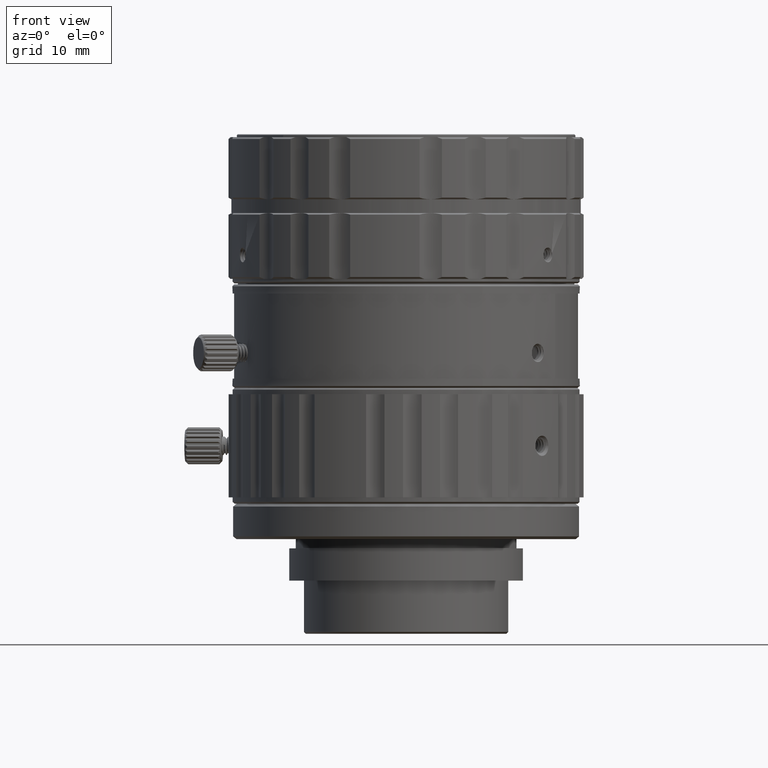
[diagram: clean part render]
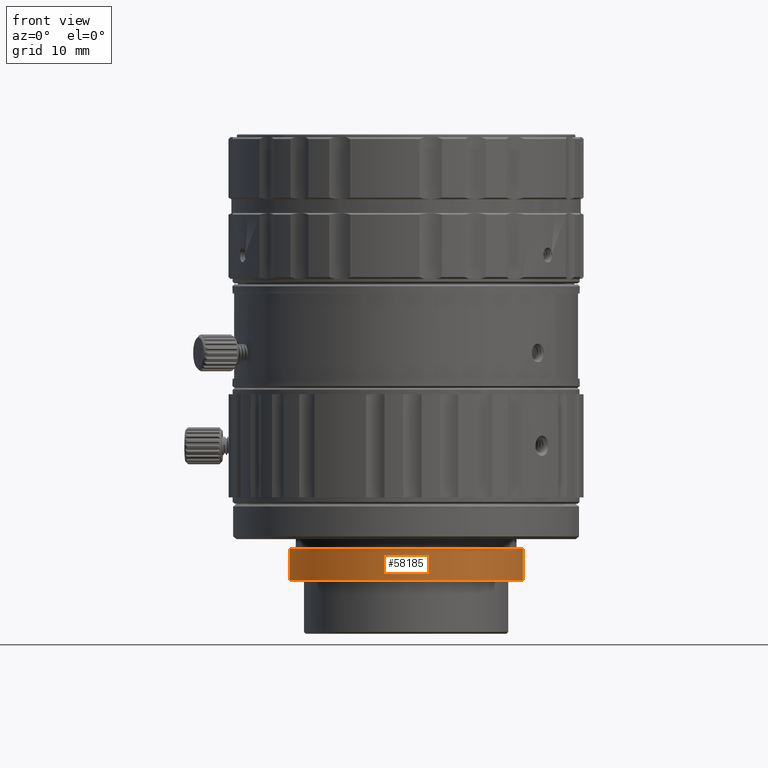
[diagram: same view with one face highlighted and labeled with its STEP entity id]
A machine part, front view. The second image highlights one B-rep face of the part: STEP entity #58185.
In plain terms, the highlighted cylindrical surface (partial cylindrical patch) has radius 12.7 mm, axis along (0, 0, -1).
Its self-contained STEP definition (entity closure, byte-faithful):
#795 = DIRECTION ( 'NONE',  ( -1.000000000000000000, 0.000000000000000000, 0.000000000000000000 ) ) ;
#1706 = ORIENTED_EDGE ( 'NONE', *, *, #60970, .T. ) ;
#2911 = CIRCLE ( 'NONE', #17421, 12.69999999999999929 ) ;
#4985 = CARTESIAN_POINT ( 'NONE',  ( 0.000000000000000000, 0.000000000000000000, -6.250000000000000000 ) ) ;
#6866 = CARTESIAN_POINT ( 'NONE',  ( -12.69999999999999929, -1.555301434917138433E-15, 5.693999999999999950 ) ) ;
#8566 = VERTEX_POINT ( 'NONE', #61919 ) ;
#8665 = EDGE_CURVE ( 'NONE', #55075, #8566, #10967, .T. ) ;
#9605 = VERTEX_POINT ( 'NONE', #36397 ) ;
#10804 = CYLINDRICAL_SURFACE ( 'NONE', #18360, 12.69999999999999929 ) ;
#10967 = CIRCLE ( 'NONE', #15391, 12.69999999999999929 ) ;
#11095 = EDGE_CURVE ( 'NONE', #9605, #42422, #2911, .T. ) ;
#11648 = ORIENTED_EDGE ( 'NONE', *, *, #11095, .T. ) ;
#11839 = FACE_OUTER_BOUND ( 'NONE', #33766, .T. ) ;
#15391 = AXIS2_PLACEMENT_3D ( 'NONE', #4985, #22072, #795 ) ;
#17421 = AXIS2_PLACEMENT_3D ( 'NONE', #64048, #41337, #47270 ) ;
#18360 = AXIS2_PLACEMENT_3D ( 'NONE', #42158, #52644, #43191 ) ;
#18818 = CARTESIAN_POINT ( 'NONE',  ( -12.69999999999999929, -1.555301434917138433E-15, -2.750000000000000000 ) ) ;
#20083 = ORIENTED_EDGE ( 'NONE', *, *, #8665, .T. ) ;
#22072 = DIRECTION ( 'NONE',  ( 0.000000000000000000, 0.000000000000000000, 1.000000000000000000 ) ) ;
#22838 = CARTESIAN_POINT ( 'NONE',  ( -12.69999999999999929, -1.555301434917138433E-15, -6.250000000000000000 ) ) ;
#22919 = DIRECTION ( 'NONE',  ( 0.000000000000000000, 0.000000000000000000, -1.000000000000000000 ) ) ;
#25156 = VECTOR ( 'NONE', #22919, 1000.000000000000000 ) ;
#25341 = ORIENTED_EDGE ( 'NONE', *, *, #49726, .F. ) ;
#33766 = EDGE_LOOP ( 'NONE', ( #11648, #1706, #20083, #25341 ) ) ;
#34815 = LINE ( 'NONE', #61721, #64387 ) ;
#36199 = DIRECTION ( 'NONE',  ( 0.000000000000000000, 0.000000000000000000, -1.000000000000000000 ) ) ;
#36397 = CARTESIAN_POINT ( 'NONE',  ( 12.69999999999999929, 0.000000000000000000, -2.750000000000000000 ) ) ;
#41337 = DIRECTION ( 'NONE',  ( 0.000000000000000000, 0.000000000000000000, -1.000000000000000000 ) ) ;
#42158 = CARTESIAN_POINT ( 'NONE',  ( 0.000000000000000000, 0.000000000000000000, 5.693999999999999950 ) ) ;
#42422 = VERTEX_POINT ( 'NONE', #18818 ) ;
#43191 = DIRECTION ( 'NONE',  ( 1.000000000000000000, 0.000000000000000000, 0.000000000000000000 ) ) ;
#47270 = DIRECTION ( 'NONE',  ( -1.000000000000000000, 0.000000000000000000, 0.000000000000000000 ) ) ;
#49726 = EDGE_CURVE ( 'NONE', #9605, #8566, #34815, .T. ) ;
#52644 = DIRECTION ( 'NONE',  ( 0.000000000000000000, 0.000000000000000000, -1.000000000000000000 ) ) ;
#54693 = LINE ( 'NONE', #6866, #25156 ) ;
#55075 = VERTEX_POINT ( 'NONE', #22838 ) ;
#58185 = ADVANCED_FACE ( 'NONE', ( #11839 ), #10804, .T. ) ;
#60970 = EDGE_CURVE ( 'NONE', #42422, #55075, #54693, .T. ) ;
#61721 = CARTESIAN_POINT ( 'NONE',  ( 12.69999999999999929, 0.000000000000000000, 5.693999999999999950 ) ) ;
#61919 = CARTESIAN_POINT ( 'NONE',  ( 12.69999999999999929, 0.000000000000000000, -6.250000000000000000 ) ) ;
#64048 = CARTESIAN_POINT ( 'NONE',  ( 0.000000000000000000, 0.000000000000000000, -2.750000000000000000 ) ) ;
#64387 = VECTOR ( 'NONE', #36199, 1000.000000000000000 ) ;